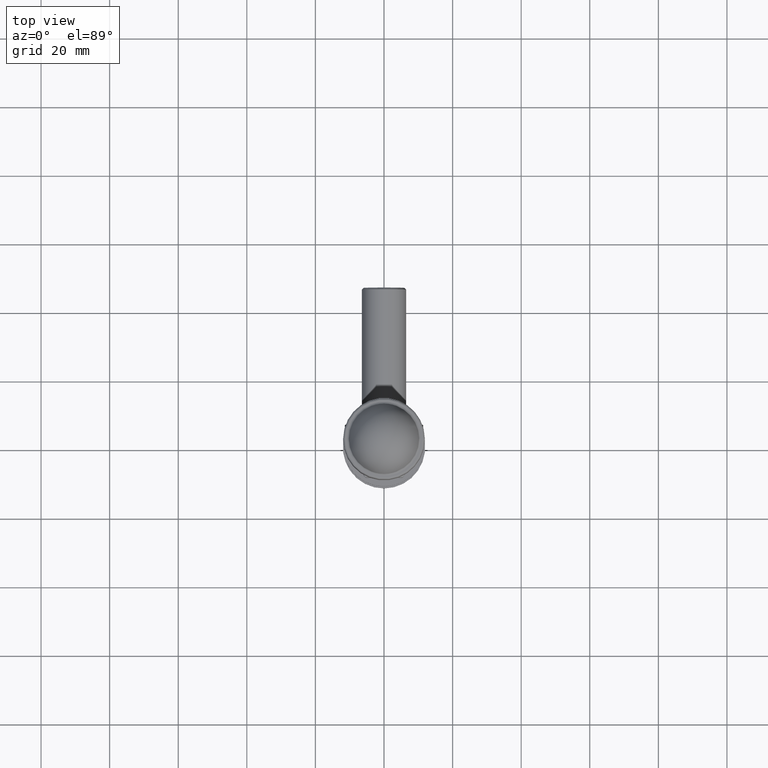
[diagram: clean part render]
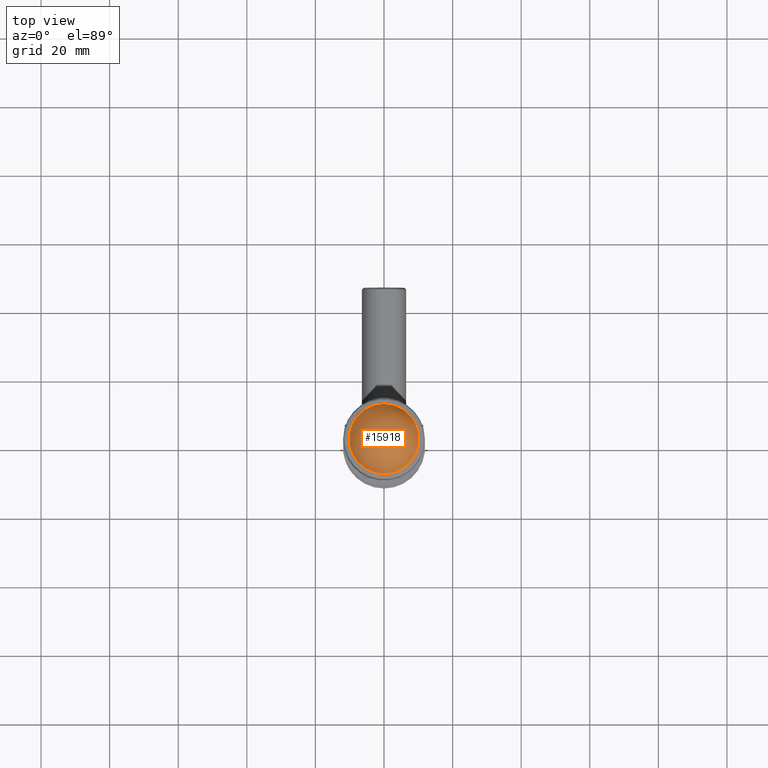
[diagram: same view with one face highlighted and labeled with its STEP entity id]
A machine part, top view. The second image highlights one B-rep face of the part: STEP entity #15918.
In plain terms, the highlighted spherical surface has radius 10.3368 mm.
Its self-contained STEP definition (entity closure, byte-faithful):
#1181 = EDGE_CURVE ( 'NONE', #13206, #13206, #14061, .T. ) ;
#2340 = CARTESIAN_POINT ( 'NONE',  ( -2.731067483295574030E-24, 12.57081734096772152, 0.000000000000000000 ) ) ;
#2928 = FACE_OUTER_BOUND ( 'NONE', #12572, .T. ) ;
#3747 = DIRECTION ( 'NONE',  ( 1.000000000000000000, 0.000000000000000000, 0.000000000000000000 ) ) ;
#4191 = AXIS2_PLACEMENT_3D ( 'NONE', #2340, #6110, #3747 ) ;
#4224 = CARTESIAN_POINT ( 'NONE',  ( 10.15925804269309474, 12.57081734096772152, 0.000000000000000000 ) ) ;
#4430 = SPHERICAL_SURFACE ( 'NONE', #10749, 10.33680555555555358 ) ;
#6110 = DIRECTION ( 'NONE',  ( -1.444893032729974187E-24, 1.000000000000000000, -0.000000000000000000 ) ) ;
#6758 = ORIENTED_EDGE ( 'NONE', *, *, #1181, .T. ) ;
#10204 = CARTESIAN_POINT ( 'NONE',  ( 2.524354896707237777E-26, 10.66319444444444997, 0.000000000000000000 ) ) ;
#10749 = AXIS2_PLACEMENT_3D ( 'NONE', #10204, #11481, #13974 ) ;
#11481 = DIRECTION ( 'NONE',  ( 0.000000000000000000, 0.000000000000000000, 1.000000000000000000 ) ) ;
#12572 = EDGE_LOOP ( 'NONE', ( #6758 ) ) ;
#13206 = VERTEX_POINT ( 'NONE', #4224 ) ;
#13974 = DIRECTION ( 'NONE',  ( -1.000000000000000000, 0.000000000000000000, 0.000000000000000000 ) ) ;
#14061 = CIRCLE ( 'NONE', #4191, 10.15925804269309474 ) ;
#15918 = ADVANCED_FACE ( 'NONE', ( #2928 ), #4430, .T. ) ;